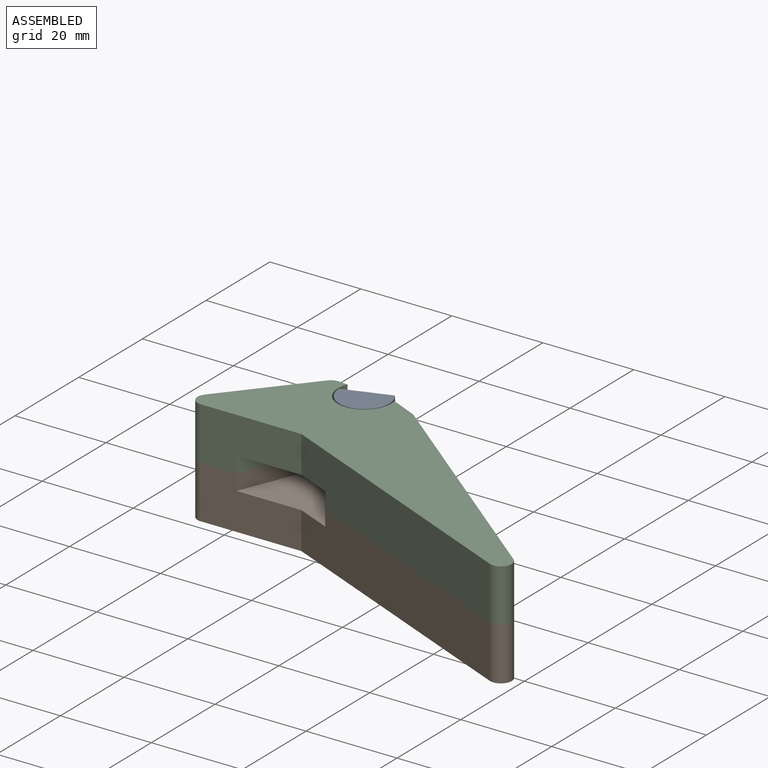
[diagram: assembled view]
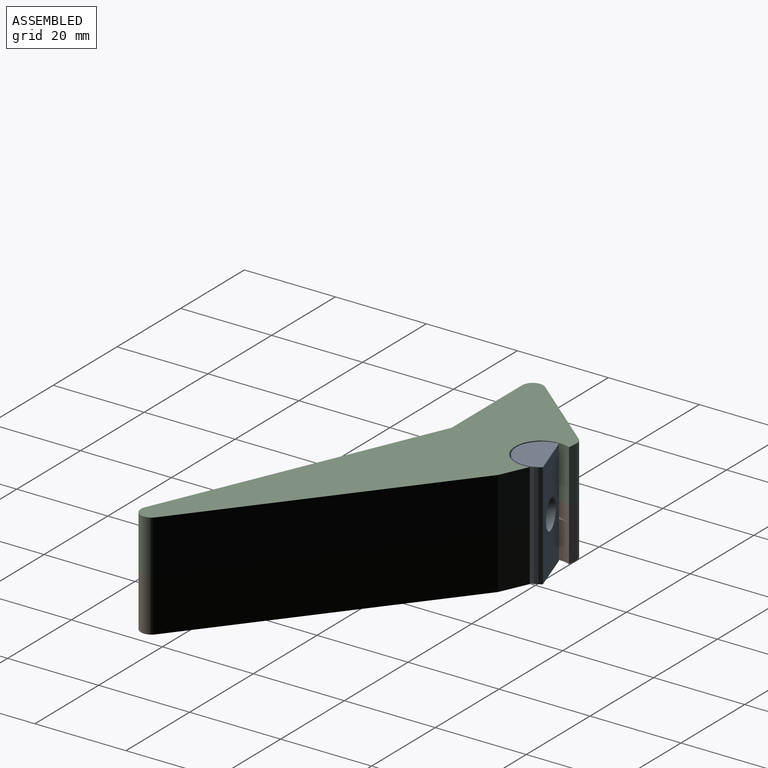
[diagram: assembled view, second angle]
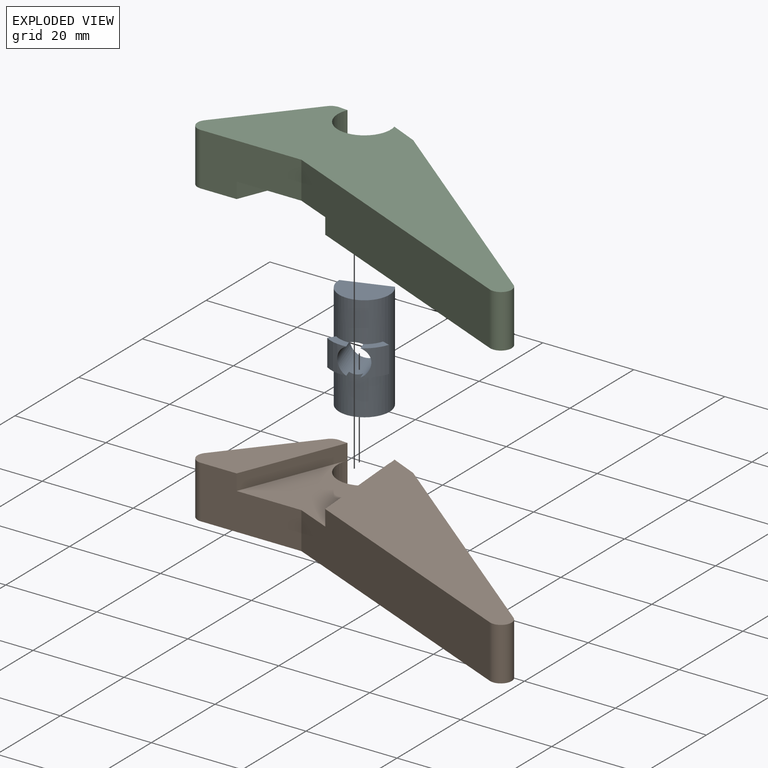
[diagram: exploded view]
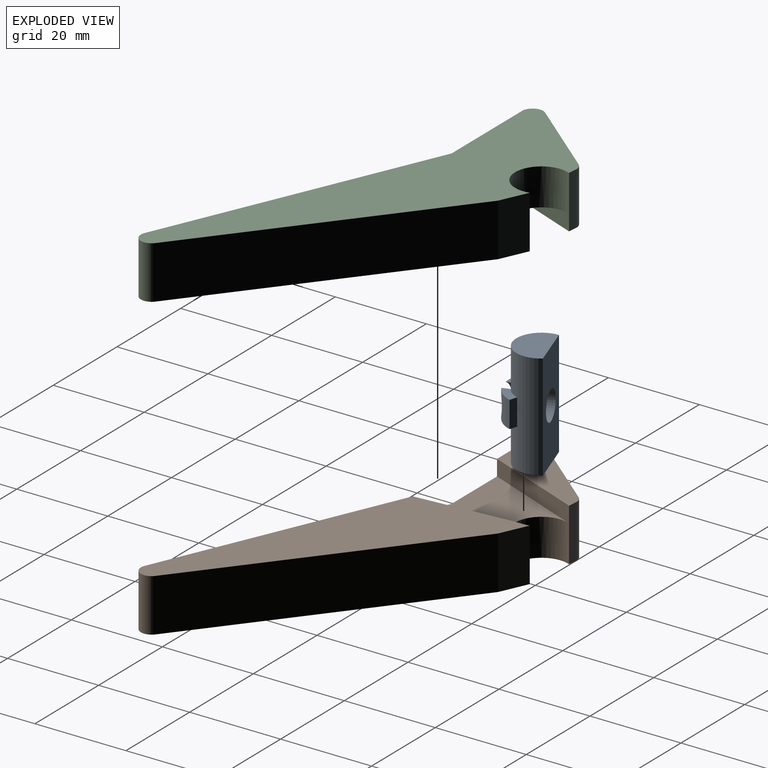
[diagram: exploded view, second angle]
ASSEMBLY  parts=3 mates=2
PART A: 13 faces, bbox 11.5x9.6x23.3 mm
  f0: cylinder r=5.52mm len=23.25mm, axis (0,0,1), area 427.2mm2, adj f3,f4,f5,f6,f7,f8,f9,f10
  f1: cylinder r=7.27mm len=5.81mm, axis (0,0,-1), area 21.6mm2, adj f4,f6,f10,f12
  f2: cylinder r=7.27mm len=5.81mm, axis (0,0,-1), area 23.6mm2, adj f3,f5,f11,f12
  f3: plane 4.74x3.59mm, normal (0,0,1), area 8.1mm2, adj f0,f2,f11,f12
  f4: plane 4.23x3.9mm, normal (0,0,1), area 7.6mm2, adj f0,f1,f10,f12
  f5: plane 4.74x3.59mm, normal (0,0,-1), area 8.1mm2, adj f0,f2,f11,f12
  f6: plane 4.23x3.9mm, normal (0,0,-1), area 7.6mm2, adj f0,f1,f10,f12
  f7: plane 23.25x10.43mm, normal (0.09,1,0), area 211.2mm2, adj f0,f8,f9,f12
  f8: plane 11.04x7.73mm, normal (0,0,-1), area 67mm2, adj f0,f7
  f9: plane 11.04x7.73mm, normal (0,0,1), area 67mm2, adj f0,f7
  f10: plane 5.81x1.44mm, normal (-0.56,0.83,0), area 10.1mm2, adj f0,f1,f4,f6
  f11: plane 5.81x1.31mm, normal (0.66,0.75,0), area 10.1mm2, adj f0,f2,f3,f5
  f12: cylinder r=3.2mm len=9.42mm, axis (0.09,1,0), area 164.4mm2, adj f0,f1,f2,f3,f4,f5,f6,f7
PART B: 16 faces, bbox 87.2x48.3x11.6 mm
  f0: cylinder r=5.81mm len=11.63mm, axis (0,0,-1), area 187mm2, adj f1,f6,f7,f8,f10,f11,f14,f15
  f1: plane 11.63x1.97mm, normal (0.09,1,0), area 23mm2, adj f0,f2,f7,f8
  f2: cylinder r=2.32mm len=11.63mm, axis (0,0,-1), area 26mm2, adj f1,f3,f7,f8
  f3: plane 17.61x14.63mm, normal (-0.77,0.64,0), area 266.1mm2, adj f2,f4,f7,f8
  f4: cylinder r=2.32mm len=11.63mm, axis (0,0,-1), area 61.2mm2, adj f3,f5,f7,f8
  f5: plane 22.13x11.63mm, normal (0,-1,0), area 207.6mm2, adj f4,f6,f7,f8,f9,f10
  f6: plane 21.79x8.8mm, normal (0.93,-0.37,0), area 82mm2, adj f0,f5,f7,f10
  f7: plane 22.26x19.12mm, normal (0,0,1), area 174.2mm2, adj f0,f1,f2,f3,f4,f5,f6
  f8: plane 87.23x48.27mm, normal (0,0,-1), area 1302.7mm2, adj f0,f1,f2,f3,f4,f5,f9,f12
  f9: plane 59.46x25.82mm, normal (-0.4,-0.92,0), area 724.9mm2, adj f5,f8,f10,f11,f12,f15
  f10: plane 25.06x21.77mm, normal (0,0,1), area 290.6mm2, adj f0,f5,f6,f9,f11
  f11: plane 22.53x3.49mm, normal (-1,-0.08,0), area 78.8mm2, adj f0,f9,f10,f15
  f12: cylinder r=2.38mm len=11.63mm, axis (0,0,-1), area 77.9mm2, adj f8,f9,f13,f15
  f13: plane 50.29x40.25mm, normal (0.62,0.78,0), area 748.8mm2, adj f8,f12,f14,f15
  f14: plane 11.63x6.06mm, normal (0.41,0.91,0), area 77.4mm2, adj f0,f8,f13,f15
  f15: plane 57.14x47.16mm, normal (0,0,1), area 838mm2, adj f0,f9,f11,f12,f13,f14
PART C: 16 faces, bbox 87.2x48.3x11.6 mm
  f0: cylinder r=5.81mm len=11.63mm, axis (0,0,1), area 187mm2, adj f1,f5,f6,f7,f9,f10,f12,f15
  f1: plane 22.53x3.49mm, normal (-1,-0.08,0), area 78.8mm2, adj f0,f2,f6,f9
  f2: plane 59.46x25.82mm, normal (-0.4,-0.92,0), area 724.9mm2, adj f1,f3,f6,f7,f8,f9
  f3: cylinder r=2.38mm len=11.63mm, axis (0,0,1), area 77.9mm2, adj f2,f4,f6,f7
  f4: plane 50.29x40.25mm, normal (0.62,0.78,0), area 748.8mm2, adj f3,f5,f6,f7
  f5: plane 11.63x6.06mm, normal (0.41,0.91,0), area 77.4mm2, adj f0,f4,f6,f7
  f6: plane 57.14x47.16mm, normal (0,0,-1), area 838mm2, adj f0,f1,f2,f3,f4,f5
  f7: plane 87.23x48.27mm, normal (0,0,1), area 1302.7mm2, adj f0,f2,f3,f4,f5,f8,f11,f12
  f8: plane 22.13x11.63mm, normal (0,-1,0), area 207.6mm2, adj f2,f7,f9,f10,f11,f15
  f9: plane 25.06x21.77mm, normal (0,0,-1), area 290.6mm2, adj f0,f1,f2,f8,f10
  f10: plane 21.79x8.8mm, normal (0.93,-0.37,0), area 82mm2, adj f0,f8,f9,f15
  f11: cylinder r=2.32mm len=11.63mm, axis (0,0,1), area 61.2mm2, adj f7,f8,f14,f15
  f12: plane 11.63x1.97mm, normal (0.09,1,0), area 23mm2, adj f0,f7,f13,f15
  f13: cylinder r=2.32mm len=11.63mm, axis (0,0,1), area 26mm2, adj f7,f12,f14,f15
  f14: plane 17.61x14.63mm, normal (-0.77,0.64,0), area 266.1mm2, adj f7,f11,f13,f15
  f15: plane 22.26x19.12mm, normal (0,0,-1), area 174.2mm2, adj f0,f8,f10,f11,f12,f13,f14
PLACE A rot(axis=(0,0,1),23.8deg) t=(13.94,-59.7,-4.41)mm
PLACE B t=(0.29,23.95,-16.03)mm fixed
PLACE C t=(-3.27,-27.83,7.22)mm
MATE fastened B.f7 <-> C.f15  axis (0,0,1) through (-17.62,-31.19,-4.41)mm
MATE revolute B.f0 <-> A.f0  axis (0,0,-1) through (-2.77,-20.6,-16.03)mm
